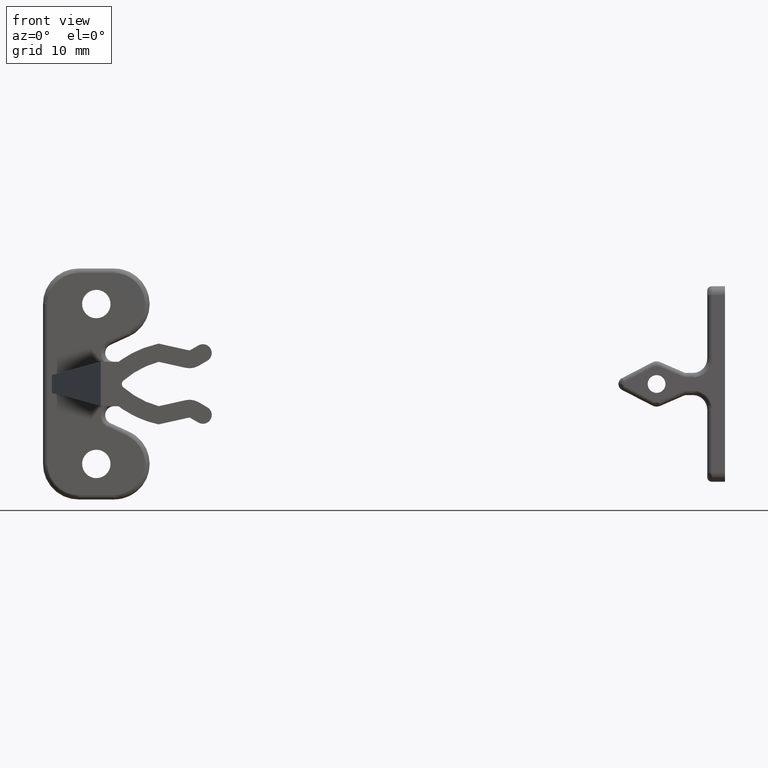
[diagram: clean part render]
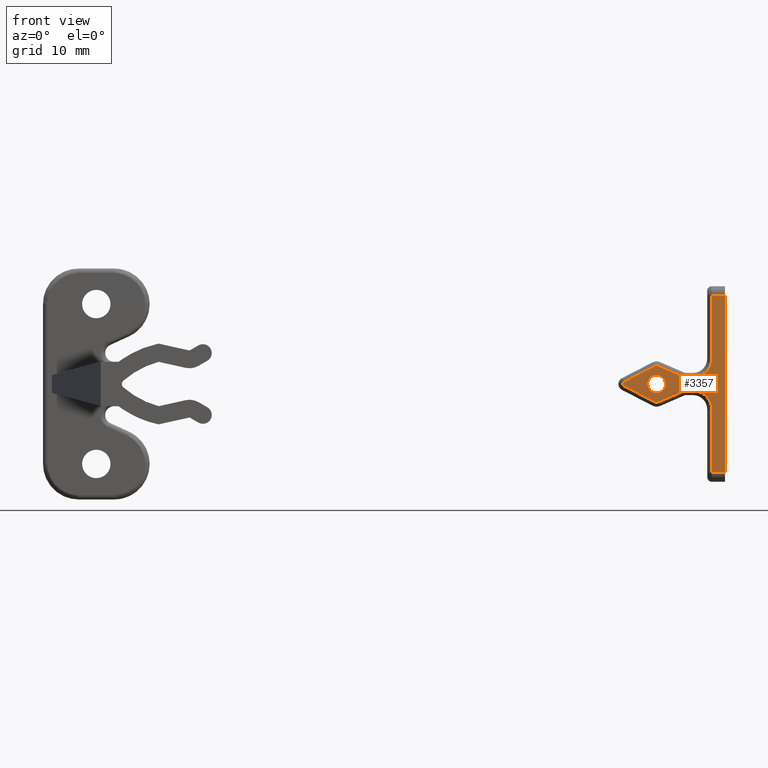
[diagram: same view with one face highlighted and labeled with its STEP entity id]
A machine part, front view. The second image highlights one B-rep face of the part: STEP entity #3357.
In plain terms, the highlighted face is a freeform B-spline surface patch.
Its self-contained STEP definition (entity closure, byte-faithful):
#464=CARTESIAN_POINT('',(70.078324627238658,-14.000000000000121,-0.078459096329596));
#465=VERTEX_POINT('',#464);
#471=CARTESIAN_POINT('',(69.081407293552900,-14.000000000000121,1.0));
#472=VERTEX_POINT('',#471);
#473=CARTESIAN_POINT('',(70.078324627238658,-14.000000000000121,-0.078459096329596));
#474=CARTESIAN_POINT('',(70.081407293552900,-14.000000000000121,-0.039290107612213));
#475=CARTESIAN_POINT('',(70.081407293552900,-14.000000000000121,0.0));
#476=CARTESIAN_POINT('',(70.081407293552900,-14.000000000000123,1.0));
#477=CARTESIAN_POINT('',(69.081407293552900,-14.000000000000121,1.0));
#485=(BOUNDED_CURVE()B_SPLINE_CURVE(2,(#473,#474,#475,#476,#477),.UNSPECIFIED.,.F.,.U.)B_SPLINE_CURVE_WITH_KNOTS((3,2,3),(0.736331300425819,0.750000000000000,1.0),.UNSPECIFIED.)CURVE()GEOMETRIC_REPRESENTATION_ITEM()RATIONAL_B_SPLINE_CURVE((0.969723355739932,0.983986122338897,1.0,0.707106781186548,1.0))REPRESENTATION_ITEM(''));
#486=EDGE_CURVE('',#465,#472,#485,.T.);
#488=CARTESIAN_POINT('',(68.084489959867142,-14.000000000000121,0.078459096329596));
#489=VERTEX_POINT('',#488);
#490=CARTESIAN_POINT('',(69.081407293552900,-14.000000000000121,1.0));
#491=CARTESIAN_POINT('',(68.157016803014116,-14.000000000000119,1.0));
#492=CARTESIAN_POINT('',(68.084489959867142,-14.000000000000121,0.078459096329596));
#500=(BOUNDED_CURVE()B_SPLINE_CURVE(2,(#490,#491,#492),.UNSPECIFIED.,.F.,.U.)B_SPLINE_CURVE_WITH_KNOTS((3,3),(0.0,0.236331300425819),.UNSPECIFIED.)CURVE()GEOMETRIC_REPRESENTATION_ITEM()RATIONAL_B_SPLINE_CURVE((1.0,0.723120658847651,0.969723355739932))REPRESENTATION_ITEM(''));
#501=EDGE_CURVE('',#472,#489,#500,.T.);
#547=CARTESIAN_POINT('',(69.081407293552900,-14.000000000000121,-1.0));
#548=VERTEX_POINT('',#547);
#549=CARTESIAN_POINT('',(68.084489959867142,-14.000000000000124,0.078459096329596));
#550=CARTESIAN_POINT('',(68.081407293552900,-14.000000000000121,0.039290107612213));
#551=CARTESIAN_POINT('',(68.081407293552900,-14.000000000000121,0.0));
#552=CARTESIAN_POINT('',(68.081407293552900,-14.000000000000123,-1.0));
#553=CARTESIAN_POINT('',(69.081407293552900,-14.000000000000121,-1.0));
#561=(BOUNDED_CURVE()B_SPLINE_CURVE(2,(#549,#550,#551,#552,#553),.UNSPECIFIED.,.F.,.U.)B_SPLINE_CURVE_WITH_KNOTS((3,2,3),(0.236331300425819,0.250000000000000,0.500000000000000),.UNSPECIFIED.)CURVE()GEOMETRIC_REPRESENTATION_ITEM()RATIONAL_B_SPLINE_CURVE((0.969723355739931,0.983986122338896,1.0,0.707106781186548,1.0))REPRESENTATION_ITEM(''));
#562=EDGE_CURVE('',#489,#548,#561,.T.);
#564=CARTESIAN_POINT('',(69.081407293552900,-14.000000000000121,-1.0));
#565=CARTESIAN_POINT('',(70.005797784091698,-14.000000000000124,-1.0));
#566=CARTESIAN_POINT('',(70.078324627238658,-14.000000000000119,-0.078459096329596));
#574=(BOUNDED_CURVE()B_SPLINE_CURVE(2,(#564,#565,#566),.UNSPECIFIED.,.F.,.U.)B_SPLINE_CURVE_WITH_KNOTS((3,3),(0.500000000000000,0.736331300425818),.UNSPECIFIED.)CURVE()GEOMETRIC_REPRESENTATION_ITEM()RATIONAL_B_SPLINE_CURVE((1.0,0.723120658847652,0.969723355739930))REPRESENTATION_ITEM(''));
#575=EDGE_CURVE('',#548,#465,#574,.T.);
#814=CARTESIAN_POINT('',(68.852169502595302,-14.0,1.994362554396365));
#815=VERTEX_POINT('',#814);
#829=CARTESIAN_POINT('',(69.081384218607866,-14.0,2.050000838327478));
#830=VERTEX_POINT('',#829);
#831=CARTESIAN_POINT('',(69.081384218607866,-13.999999999999996,2.050000838327478));
#832=CARTESIAN_POINT('',(68.960024199316209,-14.000000000000004,2.050000838687352));
#833=CARTESIAN_POINT('',(68.852169502595316,-14.0,1.994362554396339));
#841=(BOUNDED_CURVE()B_SPLINE_CURVE(2,(#831,#832,#833),.UNSPECIFIED.,.F.,.U.)B_SPLINE_CURVE_WITH_KNOTS((3,3),(0.465338066668936,1.0),.UNSPECIFIED.)CURVE()GEOMETRIC_REPRESENTATION_ITEM()RATIONAL_B_SPLINE_CURVE((0.951560972284451,0.947952863536081,1.0))REPRESENTATION_ITEM(''));
#842=EDGE_CURVE('',#830,#815,#841,.T.);
#907=CARTESIAN_POINT('',(69.282299312514013,-14.0,2.007855226873315));
#908=VERTEX_POINT('',#907);
#909=CARTESIAN_POINT('',(69.282299312514013,-14.0,2.007855226873313));
#910=CARTESIAN_POINT('',(69.186262171617216,-14.000000000000004,2.050000838683138));
#911=CARTESIAN_POINT('',(69.081384218607866,-13.999999999999996,2.050000838327478));
#919=(BOUNDED_CURVE()B_SPLINE_CURVE(2,(#909,#910,#911),.UNSPECIFIED.,.F.,.U.)B_SPLINE_CURVE_WITH_KNOTS((3,3),(0.0,0.465338066668936),.UNSPECIFIED.)CURVE()GEOMETRIC_REPRESENTATION_ITEM()RATIONAL_B_SPLINE_CURVE((1.0,0.954701256349257,0.951560972284451))REPRESENTATION_ITEM(''));
#920=EDGE_CURVE('',#908,#830,#919,.T.);
#1164=CARTESIAN_POINT('',(75.281404293552896,-14.0,10.0));
#1165=VERTEX_POINT('',#1164);
#1211=CARTESIAN_POINT('',(76.781404293552896,-14.000000000000121,10.0));
#1212=VERTEX_POINT('',#1211);
#1232=CARTESIAN_POINT('',(76.781404293552896,-14.000000000000121,10.0));
#1233=CARTESIAN_POINT('',(75.281404293552896,-14.0,10.0));
#1234=QUASI_UNIFORM_CURVE('',1,(#1232,#1233),.UNSPECIFIED.,.F.,.U.);
#1235=EDGE_CURVE('',#1212,#1165,#1234,.T.);
#1433=CARTESIAN_POINT('',(75.281404293552896,-14.0,-10.0));
#1434=VERTEX_POINT('',#1433);
#1493=CARTESIAN_POINT('',(76.781404293552896,-14.000000000000121,-10.0));
#1494=VERTEX_POINT('',#1493);
#1510=CARTESIAN_POINT('',(75.281404293552896,-14.0,-10.0));
#1511=CARTESIAN_POINT('',(76.781404293552896,-14.000000000000121,-10.0));
#1512=QUASI_UNIFORM_CURVE('',1,(#1510,#1511),.UNSPECIFIED.,.F.,.U.);
#1513=EDGE_CURVE('',#1434,#1494,#1512,.T.);
#2247=CARTESIAN_POINT('',(71.986847784162592,-14.0,0.832823064101919));
#2248=VERTEX_POINT('',#2247);
#2249=CARTESIAN_POINT('',(72.385327982236007,-14.0,0.750000000000000));
#2250=VERTEX_POINT('',#2249);
#2251=CARTESIAN_POINT('',(71.986847784162592,-14.0,0.832823064101927));
#2252=CARTESIAN_POINT('',(72.177480604869785,-14.000000000000005,0.750000000000000));
#2253=CARTESIAN_POINT('',(72.385327982236007,-14.0,0.750000000000000));
#2261=(BOUNDED_CURVE()B_SPLINE_CURVE(2,(#2251,#2252,#2253),.UNSPECIFIED.,.F.,.U.)CURVE()GEOMETRIC_REPRESENTATION_ITEM()QUASI_UNIFORM_CURVE()RATIONAL_B_SPLINE_CURVE((1.0,0.979075312705328,1.0))REPRESENTATION_ITEM(''));
#2262=EDGE_CURVE('',#2248,#2250,#2261,.T.);
#2375=CARTESIAN_POINT('',(71.986847784162592,-14.0,0.832823064101919));
#2376=CARTESIAN_POINT('',(69.282299312514013,-14.0,2.007855226873315));
#2377=QUASI_UNIFORM_CURVE('',1,(#2375,#2376),.UNSPECIFIED.,.F.,.U.);
#2378=EDGE_CURVE('',#2248,#908,#2377,.T.);
#2403=CARTESIAN_POINT('',(73.190161821615305,-14.0,0.750000000000000));
#2404=VERTEX_POINT('',#2403);
#2426=CARTESIAN_POINT('',(73.190161821615305,-14.0,0.750000000000000));
#2427=CARTESIAN_POINT('',(72.385327982236007,-14.0,0.750000000000000));
#2428=QUASI_UNIFORM_CURVE('',1,(#2426,#2427),.UNSPECIFIED.,.F.,.U.);
#2429=EDGE_CURVE('',#2404,#2250,#2428,.T.);
#2480=CARTESIAN_POINT('',(75.281398293552996,-14.0,2.849976000000000));
#2481=VERTEX_POINT('',#2480);
#2511=CARTESIAN_POINT('',(75.281398293552996,-14.0,2.849976000000000));
#2512=CARTESIAN_POINT('',(75.281398281629848,-14.0,0.758724199424303));
#2513=CARTESIAN_POINT('',(73.190161821615305,-14.0,0.750000000000000));
#2521=(BOUNDED_CURVE()B_SPLINE_CURVE(2,(#2511,#2512,#2513),.UNSPECIFIED.,.F.,.U.)CURVE()GEOMETRIC_REPRESENTATION_ITEM()QUASI_UNIFORM_CURVE()RATIONAL_B_SPLINE_CURVE((1.0,0.708580665823059,1.0))REPRESENTATION_ITEM(''));
#2522=EDGE_CURVE('',#2481,#2404,#2521,.T.);
#2543=CARTESIAN_POINT('',(65.416215930984308,-14.0,0.221880153980327));
#2544=VERTEX_POINT('',#2543);
#2560=CARTESIAN_POINT('',(68.852169502595302,-14.0,1.994362554396365));
#2561=CARTESIAN_POINT('',(65.416215930984308,-14.0,0.221880153980327));
#2562=QUASI_UNIFORM_CURVE('',1,(#2560,#2561),.UNSPECIFIED.,.F.,.U.);
#2563=EDGE_CURVE('',#815,#2544,#2562,.T.);
#2588=CARTESIAN_POINT('',(75.281404293552896,-14.0,10.0));
#2589=CARTESIAN_POINT('',(75.281398293552996,-14.0,2.849976000000000));
#2590=QUASI_UNIFORM_CURVE('',1,(#2588,#2589),.UNSPECIFIED.,.F.,.U.);
#2591=EDGE_CURVE('',#1165,#2481,#2590,.T.);
#2638=CARTESIAN_POINT('',(65.414786707454496,-14.0,-0.221134209503107));
#2639=VERTEX_POINT('',#2638);
#2655=CARTESIAN_POINT('',(65.416215930984308,-14.0,0.221880153980327));
#2656=CARTESIAN_POINT('',(65.281894230324227,-13.999999999999998,0.152147777802333));
#2657=CARTESIAN_POINT('',(65.281405979418992,-14.0,0.000805346413029));
#2658=CARTESIAN_POINT('',(65.280917728513771,-13.999999999999998,-0.150537084976275));
#2659=CARTESIAN_POINT('',(65.414786707454496,-14.0,-0.221134209503107));
#2667=(BOUNDED_CURVE()B_SPLINE_CURVE(2,(#2655,#2656,#2657,#2658,#2659),.UNSPECIFIED.,.F.,.U.)B_SPLINE_CURVE_WITH_KNOTS((3,2,3),(0.0,0.500000000000000,1.0),.UNSPECIFIED.)CURVE()GEOMETRIC_REPRESENTATION_ITEM()RATIONAL_B_SPLINE_CURVE((1.0,0.855457729092832,1.0,0.855457729092832,1.0))REPRESENTATION_ITEM(''));
#2668=EDGE_CURVE('',#2544,#2639,#2667,.T.);
#2705=CARTESIAN_POINT('',(68.853954759385999,-14.0,-1.995283503402550));
#2706=VERTEX_POINT('',#2705);
#2722=CARTESIAN_POINT('',(65.414786707454496,-14.0,-0.221134209503107));
#2723=CARTESIAN_POINT('',(68.853954759385999,-14.0,-1.995283503402550));
#2724=QUASI_UNIFORM_CURVE('',1,(#2722,#2723),.UNSPECIFIED.,.F.,.U.);
#2725=EDGE_CURVE('',#2639,#2706,#2724,.T.);
#2771=CARTESIAN_POINT('',(69.280651325574993,-14.0,-2.008604759189170));
#2772=VERTEX_POINT('',#2771);
#2788=CARTESIAN_POINT('',(68.853954759385999,-14.0,-1.995283503402550));
#2789=CARTESIAN_POINT('',(69.064159483930993,-14.000000000000007,-2.102663462028339));
#2790=CARTESIAN_POINT('',(69.280651325574993,-14.0,-2.008604759189170));
#2798=(BOUNDED_CURVE()B_SPLINE_CURVE(2,(#2788,#2789,#2790),.UNSPECIFIED.,.F.,.U.)CURVE()GEOMETRIC_REPRESENTATION_ITEM()QUASI_UNIFORM_CURVE()RATIONAL_B_SPLINE_CURVE((1.0,0.904295933446559,1.0))REPRESENTATION_ITEM(''));
#2799=EDGE_CURVE('',#2706,#2772,#2798,.T.);
#2834=CARTESIAN_POINT('',(72.177549066413903,-14.0,-0.750000000000000));
#2835=VERTEX_POINT('',#2834);
#2849=CARTESIAN_POINT('',(69.280651325574993,-14.0,-2.008604759189170));
#2850=CARTESIAN_POINT('',(72.177549066413903,-14.0,-0.750000000000000));
#2851=QUASI_UNIFORM_CURVE('',1,(#2849,#2850),.UNSPECIFIED.,.F.,.U.);
#2852=EDGE_CURVE('',#2772,#2835,#2851,.T.);
#2879=CARTESIAN_POINT('',(73.181398293553087,-14.0,-0.750000000000000));
#2880=VERTEX_POINT('',#2879);
#2896=CARTESIAN_POINT('',(72.177549066413903,-14.0,-0.750000000000000));
#2897=CARTESIAN_POINT('',(73.181398293553087,-14.0,-0.750000000000000));
#2898=QUASI_UNIFORM_CURVE('',1,(#2896,#2897),.UNSPECIFIED.,.F.,.U.);
#2899=EDGE_CURVE('',#2835,#2880,#2898,.T.);
#2929=CARTESIAN_POINT('',(75.281398293552996,-14.0,-2.850006000000000));
#2930=VERTEX_POINT('',#2929);
#2944=CARTESIAN_POINT('',(73.181398293553087,-14.0,-0.750000000000000));
#2945=CARTESIAN_POINT('',(75.281398293553039,-13.999999999999998,-0.750003000000000));
#2946=CARTESIAN_POINT('',(75.281398293552996,-14.0,-2.850006000000000));
#2954=(BOUNDED_CURVE()B_SPLINE_CURVE(2,(#2944,#2945,#2946),.UNSPECIFIED.,.F.,.U.)CURVE()GEOMETRIC_REPRESENTATION_ITEM()QUASI_UNIFORM_CURVE()RATIONAL_B_SPLINE_CURVE((1.0,0.707106781186548,1.0))REPRESENTATION_ITEM(''));
#2955=EDGE_CURVE('',#2880,#2930,#2954,.T.);
#2994=CARTESIAN_POINT('',(75.281398293552996,-14.0,-2.850006000000000));
#2995=CARTESIAN_POINT('',(75.281404293552896,-14.0,-10.0));
#2996=QUASI_UNIFORM_CURVE('',1,(#2994,#2995),.UNSPECIFIED.,.F.,.U.);
#2997=EDGE_CURVE('',#2930,#1434,#2996,.T.);
#3089=CARTESIAN_POINT('',(76.781404293552896,-14.000000000000121,-10.0));
#3090=CARTESIAN_POINT('',(76.781404293552896,-14.000000000000121,10.0));
#3091=QUASI_UNIFORM_CURVE('',1,(#3089,#3090),.UNSPECIFIED.,.F.,.U.);
#3092=EDGE_CURVE('',#1494,#1212,#3091,.T.);
#3326=CARTESIAN_POINT('',(64.706977606193874,-14.0,10.998999961236120));
#3327=CARTESIAN_POINT('',(77.355827937701093,-14.0,10.998999961236120));
#3328=CARTESIAN_POINT('',(64.706977606193874,-14.0,-10.999000497677921));
#3329=CARTESIAN_POINT('',(77.355827937701093,-14.0,-10.999000497677921));
#3330=B_SPLINE_SURFACE_WITH_KNOTS('',1,1,((#3326,#3328),(#3327,#3329)),.UNSPECIFIED.,.F.,.F.,.U.,(2,2),(2,2),(0.0,12.648850331507219),(0.0,21.998000458914039),.UNSPECIFIED.);
#3331=ORIENTED_EDGE('',*,*,#3092,.T.);
#3332=ORIENTED_EDGE('',*,*,#1235,.T.);
#3333=ORIENTED_EDGE('',*,*,#2591,.T.);
#3334=ORIENTED_EDGE('',*,*,#2522,.T.);
#3335=ORIENTED_EDGE('',*,*,#2429,.T.);
#3336=ORIENTED_EDGE('',*,*,#2262,.F.);
#3337=ORIENTED_EDGE('',*,*,#2378,.T.);
#3338=ORIENTED_EDGE('',*,*,#920,.T.);
#3339=ORIENTED_EDGE('',*,*,#842,.T.);
#3340=ORIENTED_EDGE('',*,*,#2563,.T.);
#3341=ORIENTED_EDGE('',*,*,#2668,.T.);
#3342=ORIENTED_EDGE('',*,*,#2725,.T.);
#3343=ORIENTED_EDGE('',*,*,#2799,.T.);
#3344=ORIENTED_EDGE('',*,*,#2852,.T.);
#3345=ORIENTED_EDGE('',*,*,#2899,.T.);
#3346=ORIENTED_EDGE('',*,*,#2955,.T.);
#3347=ORIENTED_EDGE('',*,*,#2997,.T.);
#3348=ORIENTED_EDGE('',*,*,#1513,.T.);
#3349=EDGE_LOOP('',(#3331,#3332,#3333,#3334,#3335,#3336,#3337,#3338,#3339,#3340,#3341,#3342,#3343,#3344,#3345,#3346,#3347,#3348));
#3350=FACE_OUTER_BOUND('',#3349,.T.);
#3351=ORIENTED_EDGE('',*,*,#575,.F.);
#3352=ORIENTED_EDGE('',*,*,#562,.F.);
#3353=ORIENTED_EDGE('',*,*,#501,.F.);
#3354=ORIENTED_EDGE('',*,*,#486,.F.);
#3355=EDGE_LOOP('',(#3351,#3352,#3353,#3354));
#3356=FACE_BOUND('',#3355,.T.);
#3357=ADVANCED_FACE('',(#3350,#3356),#3330,.F.);